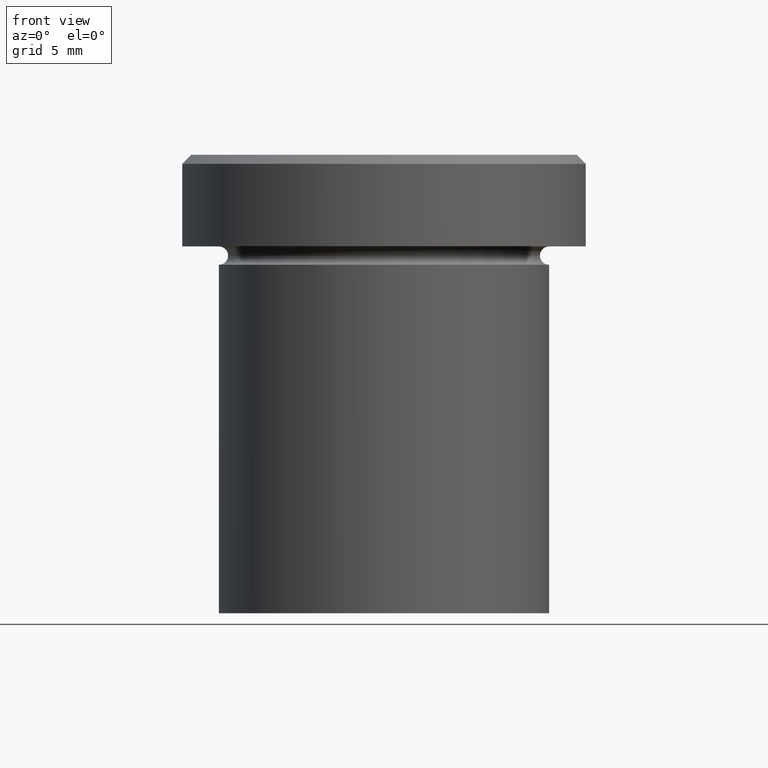
[diagram: clean part render]
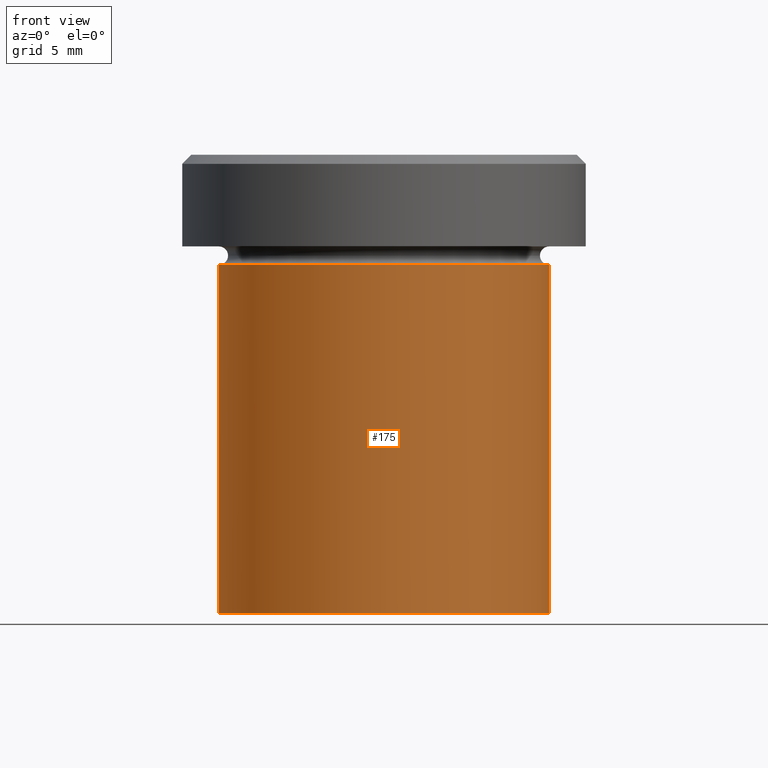
[diagram: same view with one face highlighted and labeled with its STEP entity id]
A machine part, front view. The second image highlights one B-rep face of the part: STEP entity #175.
In plain terms, the highlighted cylindrical surface (partial cylindrical patch) has radius 9 mm, axis along (-0, -0, 1).
Its self-contained STEP definition (entity closure, byte-faithful):
#3 = ORIENTED_EDGE ( 'NONE', *, *, #233, .T. ) ;
#17 = CARTESIAN_POINT ( 'NONE',  ( 0.000000000000000000, 0.000000000000000000, 0.000000000000000000 ) ) ;
#33 = DIRECTION ( 'NONE',  ( -0.000000000000000000, -0.000000000000000000, 1.000000000000000000 ) ) ;
#44 = DIRECTION ( 'NONE',  ( -0.000000000000000000, -0.000000000000000000, 1.000000000000000000 ) ) ;
#52 = CIRCLE ( 'NONE', #342, 9.000000000000000000 ) ;
#53 = VERTEX_POINT ( 'NONE', #55 ) ;
#55 = CARTESIAN_POINT ( 'NONE',  ( 9.000000000000000000, 0.000000000000000000, -6.000000000000000000 ) ) ;
#60 = EDGE_LOOP ( 'NONE', ( #195, #3, #258, #324 ) ) ;
#61 = AXIS2_PLACEMENT_3D ( 'NONE', #138, #112, #235 ) ;
#72 = CARTESIAN_POINT ( 'NONE',  ( -9.000000000000000000, 1.102182119232617714E-15, -25.00000000000000000 ) ) ;
#84 = VERTEX_POINT ( 'NONE', #107 ) ;
#97 = VERTEX_POINT ( 'NONE', #72 ) ;
#102 = EDGE_CURVE ( 'NONE', #84, #53, #132, .T. ) ;
#107 = CARTESIAN_POINT ( 'NONE',  ( 9.000000000000000000, 0.000000000000000000, -25.00000000000000000 ) ) ;
#112 = DIRECTION ( 'NONE',  ( -0.000000000000000000, -0.000000000000000000, 1.000000000000000000 ) ) ;
#132 = LINE ( 'NONE', #255, #340 ) ;
#138 = CARTESIAN_POINT ( 'NONE',  ( 0.000000000000000000, 0.000000000000000000, -6.000000000000000000 ) ) ;
#156 = EDGE_CURVE ( 'NONE', #347, #53, #230, .T. ) ;
#168 = DIRECTION ( 'NONE',  ( 1.000000000000000000, 0.000000000000000000, 0.000000000000000000 ) ) ;
#170 = CARTESIAN_POINT ( 'NONE',  ( -9.000000000000000000, 1.102182119232617714E-15, 0.000000000000000000 ) ) ;
#172 = CARTESIAN_POINT ( 'NONE',  ( -9.000000000000000000, 1.102182119232617714E-15, -6.000000000000000000 ) ) ;
#175 = ADVANCED_FACE ( 'NONE', ( #365 ), #182, .T. ) ;
#182 = CYLINDRICAL_SURFACE ( 'NONE', #287, 9.000000000000000000 ) ;
#187 = VECTOR ( 'NONE', #44, 1000.000000000000000 ) ;
#189 = DIRECTION ( 'NONE',  ( -0.000000000000000000, -0.000000000000000000, 1.000000000000000000 ) ) ;
#195 = ORIENTED_EDGE ( 'NONE', *, *, #348, .F. ) ;
#230 = CIRCLE ( 'NONE', #61, 9.000000000000000000 ) ;
#233 = EDGE_CURVE ( 'NONE', #97, #84, #52, .T. ) ;
#235 = DIRECTION ( 'NONE',  ( 1.000000000000000000, 0.000000000000000000, 0.000000000000000000 ) ) ;
#236 = LINE ( 'NONE', #170, #187 ) ;
#255 = CARTESIAN_POINT ( 'NONE',  ( 9.000000000000000000, 0.000000000000000000, 0.000000000000000000 ) ) ;
#256 = DIRECTION ( 'NONE',  ( -0.000000000000000000, -0.000000000000000000, 1.000000000000000000 ) ) ;
#258 = ORIENTED_EDGE ( 'NONE', *, *, #102, .T. ) ;
#287 = AXIS2_PLACEMENT_3D ( 'NONE', #17, #256, #315 ) ;
#315 = DIRECTION ( 'NONE',  ( 1.000000000000000000, 0.000000000000000000, 0.000000000000000000 ) ) ;
#320 = CARTESIAN_POINT ( 'NONE',  ( 0.000000000000000000, 0.000000000000000000, -25.00000000000000000 ) ) ;
#324 = ORIENTED_EDGE ( 'NONE', *, *, #156, .F. ) ;
#340 = VECTOR ( 'NONE', #189, 1000.000000000000000 ) ;
#342 = AXIS2_PLACEMENT_3D ( 'NONE', #320, #33, #168 ) ;
#347 = VERTEX_POINT ( 'NONE', #172 ) ;
#348 = EDGE_CURVE ( 'NONE', #97, #347, #236, .T. ) ;
#365 = FACE_OUTER_BOUND ( 'NONE', #60, .T. ) ;